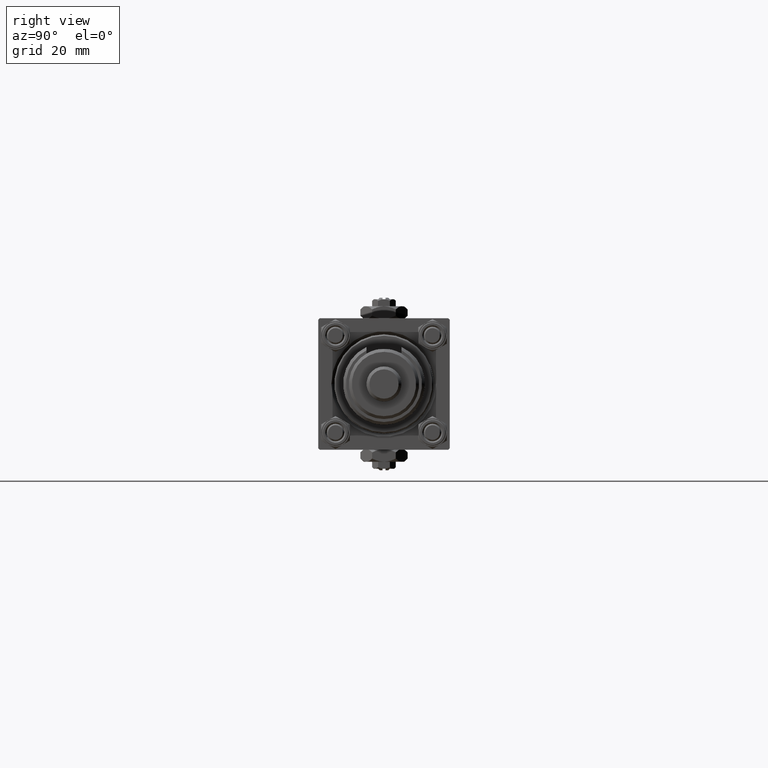
[diagram: clean part render]
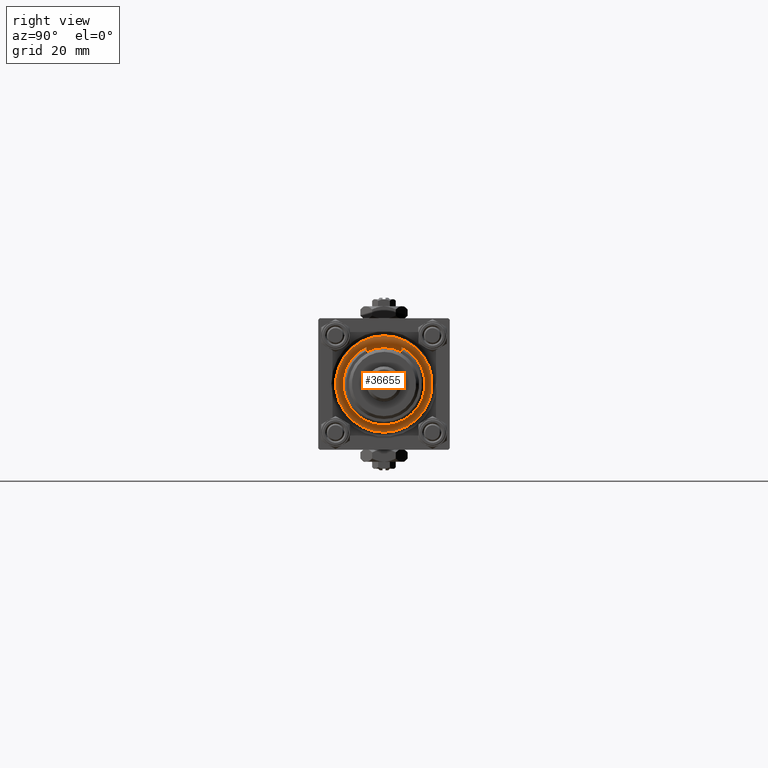
[diagram: same view with one face highlighted and labeled with its STEP entity id]
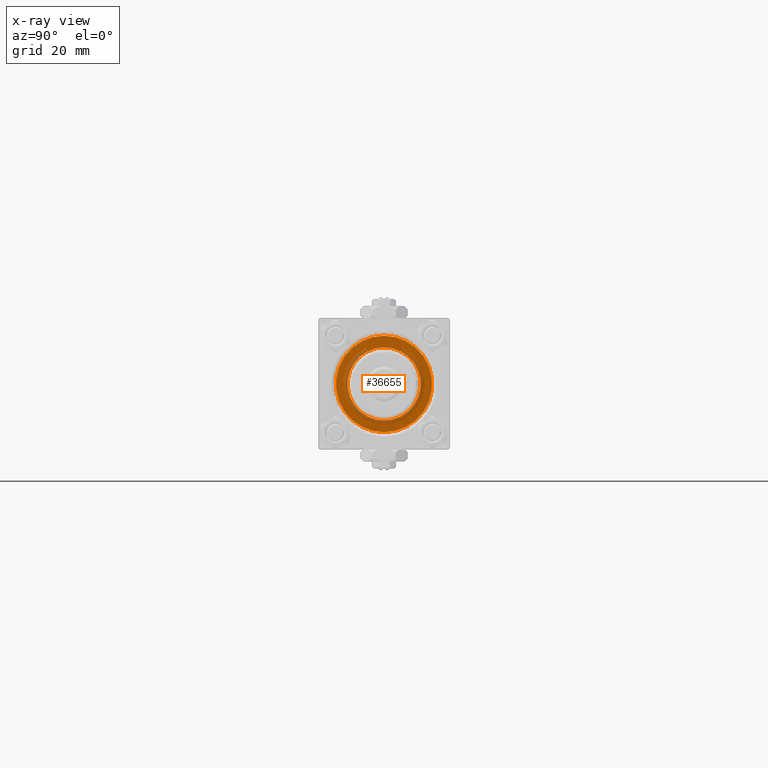
[diagram: x-ray of the same camera — body ghosted, the highlighted face saturated]
A machine part, right view. The second image highlights one B-rep face of the part: STEP entity #36655.
The next image is the same camera in x-ray: the body ghosted, the highlighted face saturated — about 29% of this face is hidden behind the body in this view.
In plain terms, the highlighted planar face has unit normal (1, -0, 0).
Its self-contained STEP definition (entity closure, byte-faithful):
#184 = CARTESIAN_POINT ( 'NONE',  ( 0.000000000000000000, 0.000000000000000000, 40.70000000000000284 ) ) ;
#361 = DIRECTION ( 'NONE',  ( 0.000000000000000000, 0.000000000000000000, 1.000000000000000000 ) ) ;
#3970 = DIRECTION ( 'NONE',  ( 1.000000000000000000, 0.000000000000000000, 0.000000000000000000 ) ) ;
#6066 = VERTEX_POINT ( 'NONE', #34351 ) ;
#6230 = DIRECTION ( 'NONE',  ( 1.000000000000000000, 0.000000000000000000, 0.000000000000000000 ) ) ;
#8394 = VERTEX_POINT ( 'NONE', #52199 ) ;
#14137 = ORIENTED_EDGE ( 'NONE', *, *, #15698, .F. ) ;
#14273 = CIRCLE ( 'NONE', #16963, 12.50000000000000000 ) ;
#15698 = EDGE_CURVE ( 'NONE', #8394, #27153, #38719, .T. ) ;
#15794 = PLANE ( 'NONE',  #54205 ) ;
#16963 = AXIS2_PLACEMENT_3D ( 'NONE', #184, #43159, #26083 ) ;
#17953 = ORIENTED_EDGE ( 'NONE', *, *, #20754, .T. ) ;
#18128 = CARTESIAN_POINT ( 'NONE',  ( 16.49999999999999289, 2.051283388571816493E-15, 40.70000000000000284 ) ) ;
#19482 = CARTESIAN_POINT ( 'NONE',  ( -12.50000000000000000, 1.530808498934191521E-15, 40.70000000000000284 ) ) ;
#20235 = DIRECTION ( 'NONE',  ( 0.000000000000000000, 0.000000000000000000, 1.000000000000000000 ) ) ;
#20754 = EDGE_CURVE ( 'NONE', #6066, #37475, #45780, .T. ) ;
#22035 = AXIS2_PLACEMENT_3D ( 'NONE', #39866, #39597, #6230 ) ;
#23783 = EDGE_CURVE ( 'NONE', #37475, #6066, #24793, .T. ) ;
#24349 = DIRECTION ( 'NONE',  ( 0.000000000000000000, 0.000000000000000000, 1.000000000000000000 ) ) ;
#24793 = CIRCLE ( 'NONE', #42371, 16.49999999999999289 ) ;
#25740 = EDGE_CURVE ( 'NONE', #27153, #8394, #14273, .T. ) ;
#26083 = DIRECTION ( 'NONE',  ( 1.000000000000000000, 0.000000000000000000, 0.000000000000000000 ) ) ;
#27153 = VERTEX_POINT ( 'NONE', #19482 ) ;
#32383 = CARTESIAN_POINT ( 'NONE',  ( 0.000000000000000000, 0.000000000000000000, 40.70000000000000284 ) ) ;
#32544 = AXIS2_PLACEMENT_3D ( 'NONE', #32383, #20235, #41731 ) ;
#34351 = CARTESIAN_POINT ( 'NONE',  ( -16.49999999999999289, 0.000000000000000000, 40.70000000000000284 ) ) ;
#36655 = ADVANCED_FACE ( 'NONE', ( #44998, #53551 ), #15794, .T. ) ;
#37322 = CARTESIAN_POINT ( 'NONE',  ( 0.000000000000000000, 0.000000000000000000, 40.70000000000000284 ) ) ;
#37475 = VERTEX_POINT ( 'NONE', #18128 ) ;
#38719 = CIRCLE ( 'NONE', #32544, 12.50000000000000000 ) ;
#39597 = DIRECTION ( 'NONE',  ( 0.000000000000000000, 0.000000000000000000, 1.000000000000000000 ) ) ;
#39866 = CARTESIAN_POINT ( 'NONE',  ( 0.000000000000000000, 0.000000000000000000, 40.70000000000000284 ) ) ;
#41731 = DIRECTION ( 'NONE',  ( 1.000000000000000000, 0.000000000000000000, 0.000000000000000000 ) ) ;
#41972 = DIRECTION ( 'NONE',  ( 1.000000000000000000, 0.000000000000000000, -0.000000000000000000 ) ) ;
#42371 = AXIS2_PLACEMENT_3D ( 'NONE', #37322, #361, #3970 ) ;
#43159 = DIRECTION ( 'NONE',  ( 0.000000000000000000, 0.000000000000000000, 1.000000000000000000 ) ) ;
#43725 = EDGE_LOOP ( 'NONE', ( #14137, #50483 ) ) ;
#44998 = FACE_BOUND ( 'NONE', #43725, .T. ) ;
#45780 = CIRCLE ( 'NONE', #22035, 16.49999999999999289 ) ;
#48395 = ORIENTED_EDGE ( 'NONE', *, *, #23783, .T. ) ;
#49414 = CARTESIAN_POINT ( 'NONE',  ( 0.000000000000000000, 0.000000000000000000, 40.70000000000000284 ) ) ;
#50483 = ORIENTED_EDGE ( 'NONE', *, *, #25740, .F. ) ;
#52199 = CARTESIAN_POINT ( 'NONE',  ( 12.50000000000000000, 0.000000000000000000, 40.70000000000000284 ) ) ;
#53240 = EDGE_LOOP ( 'NONE', ( #17953, #48395 ) ) ;
#53551 = FACE_OUTER_BOUND ( 'NONE', #53240, .T. ) ;
#54205 = AXIS2_PLACEMENT_3D ( 'NONE', #49414, #24349, #41972 ) ;